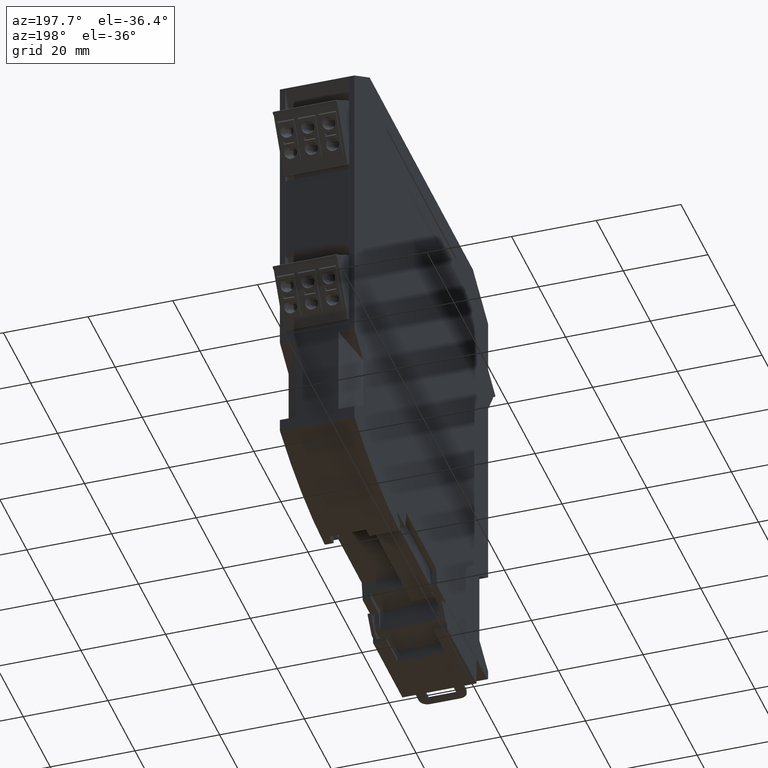
[diagram: clean part render]
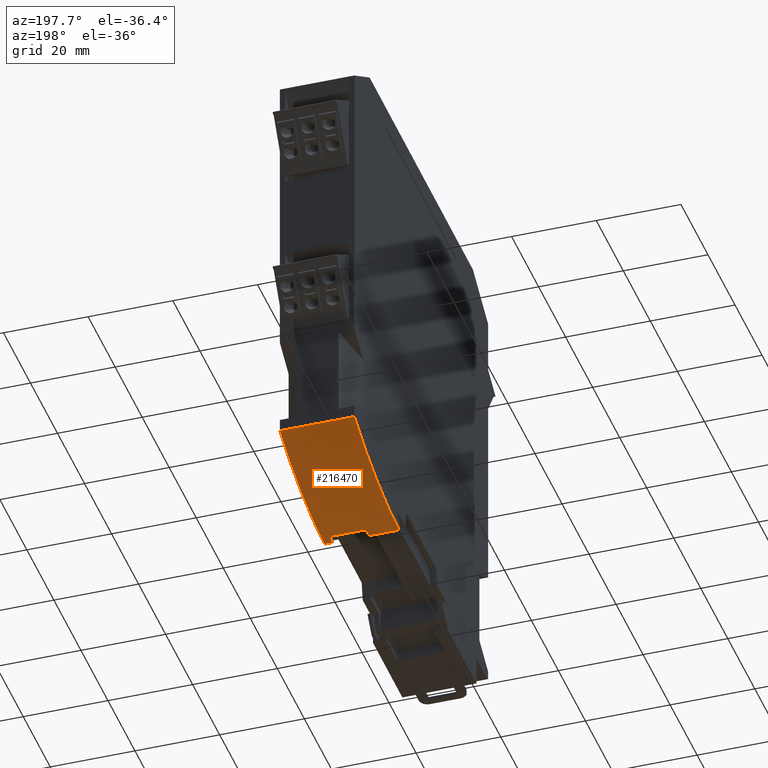
[diagram: same view with one face highlighted and labeled with its STEP entity id]
A machine part, auxiliary view. The second image highlights one B-rep face of the part: STEP entity #216470.
In plain terms, the highlighted cylindrical surface (partial cylindrical patch) has radius 80 mm, axis along (1, -0, -0).
Its self-contained STEP definition (entity closure, byte-faithful):
#192080=CARTESIAN_POINT('',(-5.00000077734407,72.8348559634011,
2.4551685132036));
#192090=VERTEX_POINT('',#192080);
#192120=CARTESIAN_POINT('',(-5.00000077734407,69.8643478314702,
82.3999999999116));
#192130=DIRECTION('',(1.,-2.24748522192808E-16,-2.28384227764925E-18));
#192140=DIRECTION('',(2.24748522192804E-16,1.,-1.88477583894362E-12));
#192150=AXIS2_PLACEMENT_3D('',#192120,#192130,#192140);
#192160=CIRCLE('',#192150,80.);
#192170=CARTESIAN_POINT('',(-5.00000077734406,105.864347831845,
10.9577156021333));
#192180=VERTEX_POINT('',#192170);
#192190=EDGE_CURVE('',#192090,#192180,#192160,.T.);
#193610=CARTESIAN_POINT('',(12.5999992226559,105.864347831845,
10.9577156021333));
#193620=VERTEX_POINT('',#193610);
#193650=CARTESIAN_POINT('',(12.5999992226559,69.8643478314702,
82.3999999999116));
#193660=DIRECTION('',(1.,-2.24748522192808E-16,-2.28384227764925E-18));
#193670=DIRECTION('',(2.24748522192804E-16,1.,-1.88477583894362E-12));
#193680=AXIS2_PLACEMENT_3D('',#193650,#193660,#193670);
#193690=CIRCLE('',#193680,80.);
#193700=CARTESIAN_POINT('',(12.5999992226559,72.8348559634011,
2.4551685132036));
#193710=VERTEX_POINT('',#193700);
#193720=EDGE_CURVE('',#193710,#193620,#193690,.T.);
#215780=CARTESIAN_POINT('',(-5.00000077734406,105.864347831845,
10.9577156021333));
#215790=DIRECTION('',(1.,-2.24748522192808E-16,-2.28384227764925E-18));
#215800=VECTOR('',#215790,1.);
#215810=LINE('',#215780,#215800);
#215820=EDGE_CURVE('',#192180,#193620,#215810,.T.);
#216010=CARTESIAN_POINT('',(-5.00000077734407,69.8643478314702,
82.3999999999116));
#216020=DIRECTION('',(1.,-2.24748522192808E-16,-2.28384227764925E-18));
#216030=DIRECTION('',(2.24748522192804E-16,1.,-1.88477583894362E-12));
#216040=AXIS2_PLACEMENT_3D('',#216010,#216020,#216030);
#216050=CYLINDRICAL_SURFACE('',#216040,80.);
#216060=ORIENTED_EDGE('',*,*,#192190,.T.);
#216070=CARTESIAN_POINT('',(-5.00000077734407,72.8348559634011,
2.4551685132036));
#216080=DIRECTION('',(1.,-2.24748522192808E-16,-2.28384227764925E-18));
#216090=VECTOR('',#216080,1.);
#216100=LINE('',#216070,#216090);
#216110=CARTESIAN_POINT('',(2.09999922293749,72.8348559634011,
2.4551685132036));
#216120=VERTEX_POINT('',#216110);
#216130=EDGE_CURVE('',#192090,#216120,#216100,.T.);
#216140=ORIENTED_EDGE('',*,*,#216130,.F.);
#216150=CARTESIAN_POINT('',(2.09999922293749,69.8643478314702,
82.3999999999116));
#216160=DIRECTION('',(1.,-2.24748522192808E-16,-2.28384227764925E-18));
#216170=DIRECTION('',(2.24748522192804E-16,1.,-1.88477583894362E-12));
#216180=AXIS2_PLACEMENT_3D('',#216150,#216160,#216170);
#216190=CIRCLE('',#216180,80.);
#216200=CARTESIAN_POINT('',(2.09999922293749,75.0643478315358,
2.569178884259));
#216210=VERTEX_POINT('',#216200);
#216220=EDGE_CURVE('',#216120,#216210,#216190,.T.);
#216230=ORIENTED_EDGE('',*,*,#216220,.F.);
#216240=CARTESIAN_POINT('',(-5.00000077734407,75.0643478315357,
2.569178884259));
#216250=DIRECTION('',(1.,-2.24748522192808E-16,-2.28384227764925E-18));
#216260=VECTOR('',#216250,1.);
#216270=LINE('',#216240,#216260);
#216280=CARTESIAN_POINT('',(10.6999992226559,75.0643478315357,
2.569178884259));
#216290=VERTEX_POINT('',#216280);
#216300=EDGE_CURVE('',#216210,#216290,#216270,.T.);
#216310=ORIENTED_EDGE('',*,*,#216300,.F.);
#216320=CARTESIAN_POINT('',(10.6999992226559,69.8643478314702,
82.3999999999116));
#216330=DIRECTION('',(1.,-2.24748522192808E-16,-2.28384227764925E-18));
#216340=DIRECTION('',(2.24748522192804E-16,1.,-1.88477583894362E-12));
#216350=AXIS2_PLACEMENT_3D('',#216320,#216330,#216340);
#216360=CIRCLE('',#216350,80.);
#216370=CARTESIAN_POINT('',(10.6999992226559,72.8348559634011,
2.4551685132036));
#216380=VERTEX_POINT('',#216370);
#216390=EDGE_CURVE('',#216380,#216290,#216360,.T.);
#216400=ORIENTED_EDGE('',*,*,#216390,.T.);
#216410=EDGE_CURVE('',#216380,#193710,#216100,.T.);
#216420=ORIENTED_EDGE('',*,*,#216410,.F.);
#216430=ORIENTED_EDGE('',*,*,#193720,.F.);
#216440=ORIENTED_EDGE('',*,*,#215820,.T.);
#216450=EDGE_LOOP('',(#216440,#216430,#216420,#216400,#216310,#216230,
#216140,#216060));
#216460=FACE_OUTER_BOUND('',#216450,.T.);
#216470=ADVANCED_FACE('',(#216460),#216050,.T.);